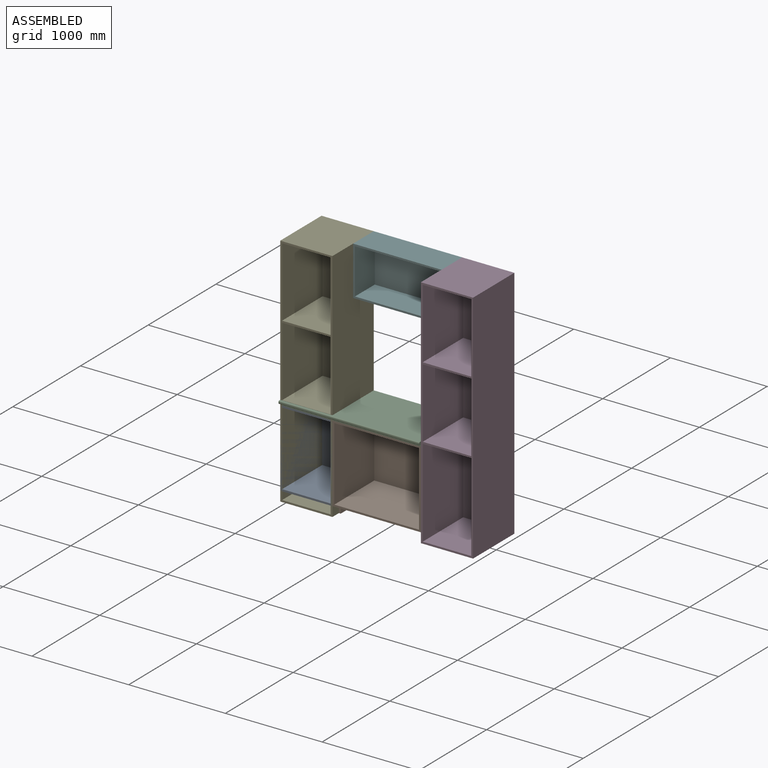
[diagram: assembled view]
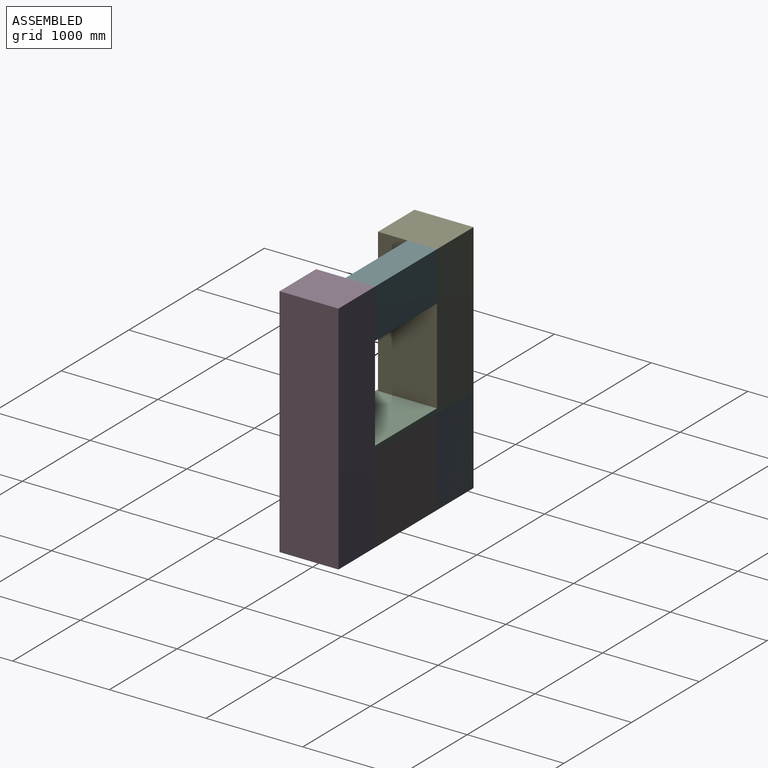
[diagram: assembled view, second angle]
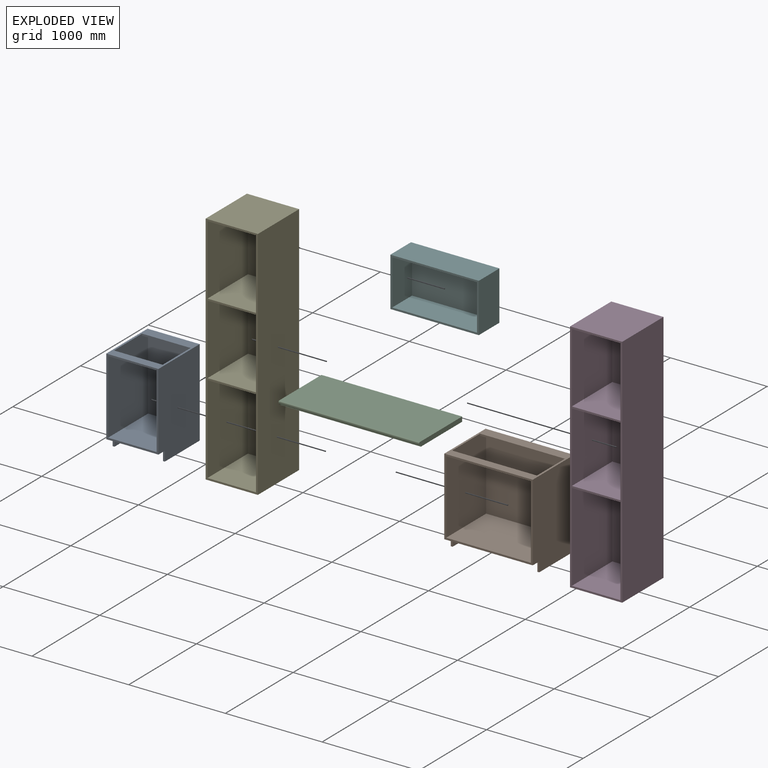
[diagram: exploded view]
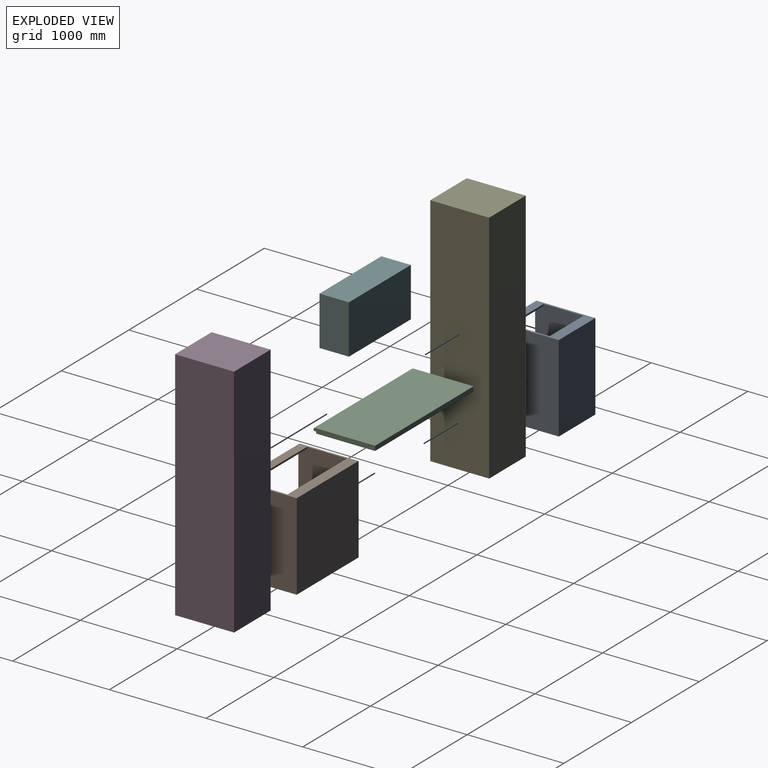
[diagram: exploded view, second angle]
ASSEMBLY  parts=6 mates=5
PART A: 20 faces, bbox 539.8x609.6x901.7 mm
  f0: plane 781.05x590.55mm, normal (-1,0,0), area 457862mm2, adj f1,f5,f10,f15,f16,f17,f18,f19
  f1: plane 609.6x539.75mm, normal (0,0,1), area 121975.6mm2, adj f0,f2,f5,f8,f11,f14,f17,f19
  f2: plane 901.7x539.75mm, normal (0,1,0), area 486692.6mm2, adj f1,f4,f8,f14
  f3: plane 495.3x101.6mm, normal (-1,0,0), area 50322.5mm2, adj f4,f6,f7,f9
  f4: plane 539.75x514.35mm, normal (0,0,-1), area 29153.2mm2, adj f2,f3,f7,f8,f9,f12,f13,f14
  f5: plane 800.1x539.75mm, normal (0,-1,0), area 49596.7mm2, adj f0,f1,f6,f8,f11,f14,f15,f18
  f6: plane 590.55x539.75mm, normal (0,0,-1), area 299878.4mm2, adj f3,f5,f7,f8,f9,f12,f13,f14
  f7: plane 101.6x19.05mm, normal (0,-1,0), area 1935.5mm2, adj f3,f4,f6,f8
  f8: plane 901.7x609.6mm, normal (1,0,0), area 539998.9mm2, adj f1,f2,f4,f5,f6,f7
  f9: plane 501.65x101.6mm, normal (0,-1,0), area 50967.6mm2, adj f3,f4,f6,f12
  f10: plane 762x501.65mm, normal (0,-1,0), area 382257.3mm2, adj f0,f11,f15,f16
  f11: plane 781.05x590.55mm, normal (1,0,0), area 457862mm2, adj f1,f5,f10,f15,f16,f17,f18,f19
  f12: plane 495.3x101.6mm, normal (1,0,0), area 50322.5mm2, adj f4,f6,f9,f13
  f13: plane 101.6x19.05mm, normal (0,-1,0), area 1935.5mm2, adj f4,f6,f12,f14
  f14: plane 901.7x609.6mm, normal (-1,0,0), area 539998.9mm2, adj f1,f2,f4,f5,f6,f13
  f15: plane 590.55x501.65mm, normal (0,0,1), area 296249.4mm2, adj f0,f5,f10,f11
  f16: plane 501.65x88.9mm, normal (0,0,-1), area 44596.7mm2, adj f0,f10,f11,f17
  f17: plane 501.65x19.05mm, normal (0,-1,0), area 9556.4mm2, adj f0,f1,f11,f16
  f18: plane 501.65x88.9mm, normal (0,0,-1), area 44596.7mm2, adj f0,f5,f11,f19
  f19: plane 501.65x19.05mm, normal (0,1,0), area 9556.4mm2, adj f0,f1,f11,f18
PART B: 20 faces, bbox 914.4x609.6x901.7 mm
  f0: plane 781.05x590.55mm, normal (1,0,0), area 457862mm2, adj f2,f6,f9,f15,f16,f17,f18,f19
  f1: plane 914.4x901.7mm, normal (0,1,0), area 824514.5mm2, adj f2,f5,f8,f13
  f2: plane 914.4x609.6mm, normal (0,0,1), area 195725.4mm2, adj f0,f1,f6,f8,f10,f13,f17,f19
  f3: plane 914.4x590.55mm, normal (0,0,-1), area 521128mm2, adj f4,f6,f7,f8,f11,f12,f13,f14
  f4: plane 495.3x101.6mm, normal (1,0,0), area 50322.5mm2, adj f3,f5,f7,f14
  f5: plane 914.4x514.35mm, normal (0,0,-1), area 36290.3mm2, adj f1,f4,f7,f8,f11,f12,f13,f14
  f6: plane 914.4x800.1mm, normal (0,-1,0), area 63870.8mm2, adj f0,f2,f3,f8,f9,f10,f13,f18
  f7: plane 101.6x19.05mm, normal (0,-1,0), area 1935.5mm2, adj f3,f4,f5,f8
  f8: plane 901.7x609.6mm, normal (-1,0,0), area 539998.9mm2, adj f1,f2,f3,f5,f6,f7
  f9: plane 876.3x590.55mm, normal (0,0,1), area 517499mm2, adj f0,f6,f10,f15
  f10: plane 781.05x590.55mm, normal (-1,0,0), area 457862mm2, adj f2,f6,f9,f15,f16,f17,f18,f19
  f11: plane 495.3x101.6mm, normal (-1,0,0), area 50322.5mm2, adj f3,f5,f12,f14
  f12: plane 101.6x19.05mm, normal (0,-1,0), area 1935.5mm2, adj f3,f5,f11,f13
  f13: plane 901.7x609.6mm, normal (1,0,0), area 539998.9mm2, adj f1,f2,f3,f5,f6,f12
  f14: plane 876.3x101.6mm, normal (0,-1,0), area 89032.1mm2, adj f3,f4,f5,f11
  f15: plane 876.3x762mm, normal (0,-1,0), area 667740.6mm2, adj f0,f9,f10,f16
  f16: plane 876.3x88.9mm, normal (0,0,-1), area 77903.1mm2, adj f0,f10,f15,f17
  f17: plane 876.3x19.05mm, normal (0,-1,0), area 16693.5mm2, adj f0,f2,f10,f16
  f18: plane 876.3x88.9mm, normal (0,0,-1), area 77903.1mm2, adj f0,f6,f10,f19
  f19: plane 876.3x19.05mm, normal (0,1,0), area 16693.5mm2, adj f0,f2,f10,f18
PART C: 10 faces, bbox 1454.2x635x49.1 mm
  f0: plane 635x49.05mm, normal (-1,0,0), area 30620mm2, adj f1,f3,f4,f5,f6,f7,f8,f9
  f1: plane 1454.15x19.05mm, normal (0,-1,0), area 27701.6mm2, adj f0,f2,f4,f5
  f2: plane 635x49.05mm, normal (1,0,0), area 30620mm2, adj f1,f3,f4,f5,f6,f7,f8,f9
  f3: plane 1454.15x49.05mm, normal (0,1,0), area 71326.1mm2, adj f0,f2,f4,f7
  f4: plane 1454.15x609.6mm, normal (0,0,-1), area 886449.8mm2, adj f0,f1,f2,f3
  f5: plane 1454.15x15.4mm, normal (0,0,-1), area 22393.9mm2, adj f0,f1,f2,f8
  f6: plane 1454.15x10mm, normal (0,-1,0), area 14541.5mm2, adj f0,f2,f8,f9
  f7: plane 1454.15x625mm, normal (0,0,1), area 908843.8mm2, adj f0,f2,f3,f9
  f8: cylinder r=10mm len=1454.15mm, axis (1,0,0), area 22841.7mm2, adj f0,f2,f5,f6
  f9: cylinder r=10mm len=1454.15mm, axis (-1,0,0), area 22841.7mm2, adj f0,f2,f6,f7
PART D: 21 faces, bbox 539.8x609.6x2438.4 mm
  f0: plane 2438.4x539.75mm, normal (0,1,0), area 1316126.4mm2, adj f5,f6,f7,f14
  f1: plane 2438.4x539.75mm, normal (0,-1,0), area 131128.8mm2, adj f2,f3,f4,f5,f6,f7,f8,f9
  f2: plane 723.9x596.9mm, normal (1,0,0), area 432095.9mm2, adj f1,f8,f17,f19
  f3: plane 914.4x596.9mm, normal (1,0,0), area 545805.4mm2, adj f1,f10,f16,f18
  f4: plane 723.9x596.9mm, normal (1,0,0), area 432095.9mm2, adj f1,f9,f15,f20
  f5: plane 609.6x539.75mm, normal (0,0,-1), area 329031.6mm2, adj f0,f1,f7,f14
  f6: plane 609.6x539.75mm, normal (0,0,1), area 329031.6mm2, adj f0,f1,f7,f14
  f7: plane 2438.4x609.6mm, normal (-1,0,0), area 1486448.6mm2, adj f0,f1,f5,f6
  f8: plane 596.9x501.65mm, normal (0,0,1), area 299434.9mm2, adj f1,f2,f11,f19
  f9: plane 596.9x501.65mm, normal (0,0,1), area 299434.9mm2, adj f1,f4,f13,f20
  f10: plane 596.9x501.65mm, normal (0,0,1), area 299434.9mm2, adj f1,f3,f12,f18
  f11: plane 723.9x596.9mm, normal (-1,0,0), area 432095.9mm2, adj f1,f8,f17,f19
  f12: plane 914.4x596.9mm, normal (-1,0,0), area 545805.4mm2, adj f1,f10,f16,f18
  f13: plane 723.9x596.9mm, normal (-1,0,0), area 432095.9mm2, adj f1,f9,f15,f20
  f14: plane 2438.4x609.6mm, normal (1,0,0), area 1486448.6mm2, adj f0,f1,f5,f6
  f15: plane 596.9x501.65mm, normal (0,0,-1), area 299434.9mm2, adj f1,f4,f13,f20
  f16: plane 596.9x501.65mm, normal (0,0,-1), area 299434.9mm2, adj f1,f3,f12,f18
  f17: plane 596.9x501.65mm, normal (0,0,-1), area 299434.9mm2, adj f1,f2,f11,f19
  f18: plane 914.4x501.65mm, normal (0,-1,0), area 458708.8mm2, adj f3,f10,f12,f16
  f19: plane 723.9x501.65mm, normal (0,-1,0), area 363144.4mm2, adj f2,f8,f11,f17
  f20: plane 723.9x501.65mm, normal (0,-1,0), area 363144.4mm2, adj f4,f9,f13,f15
PART E: same geometry as D
PART F: 11 faces, bbox 914.4x304.8x508 mm
  f0: plane 876.3x292.1mm, normal (0,0,-1), area 255967.2mm2, adj f1,f3,f5,f10
  f1: plane 914.4x508mm, normal (0,-1,0), area 52741.8mm2, adj f0,f2,f3,f4,f5,f6,f7,f9
  f2: plane 876.3x292.1mm, normal (0,0,1), area 255967.2mm2, adj f1,f3,f5,f10
  f3: plane 469.9x292.1mm, normal (-1,0,0), area 137257.8mm2, adj f0,f1,f2,f10
  f4: plane 508x304.8mm, normal (1,0,0), area 154838.4mm2, adj f1,f7,f8,f9
  f5: plane 469.9x292.1mm, normal (1,0,0), area 137257.8mm2, adj f0,f1,f2,f10
  f6: plane 508x304.8mm, normal (-1,0,0), area 154838.4mm2, adj f1,f7,f8,f9
  f7: plane 914.4x304.8mm, normal (0,0,1), area 278709.1mm2, adj f1,f4,f6,f8
  f8: plane 914.4x508mm, normal (0,1,0), area 464515.2mm2, adj f4,f6,f7,f9
  f9: plane 914.4x304.8mm, normal (0,0,-1), area 278709.1mm2, adj f1,f4,f6,f8
  f10: plane 876.3x469.9mm, normal (0,-1,0), area 411773.4mm2, adj f0,f2,f3,f5
PLACE A t=(-994.72,268.46,-422.2)mm
PLACE B t=(-454.97,268.46,-422.2)mm fixed
PLACE C t=(-994.72,-341.14,479.5)mm
PLACE D t=(459.43,268.46,-422.2)mm
PLACE E t=(-994.72,268.46,-422.2)mm
PLACE F t=(-454.97,268.46,1508.2)mm
MATE planar A.f14 <-> E.f7  axis (-1,0,0) through (-994.72,268.46,-422.2)mm
MATE planar A.f8 <-> B.f8  axis (1,0,0) through (-454.97,268.46,-422.2)mm
MATE planar D.f7 <-> B.f13  axis (-1,0,0) through (459.43,268.46,-422.2)mm
MATE planar F.f4 <-> D.f7  axis (1,0,0) through (459.43,268.46,2016.2)mm
MATE planar C.f4 <-> B.f2  axis (0,0,-1) through (459.43,268.46,479.5)mm
